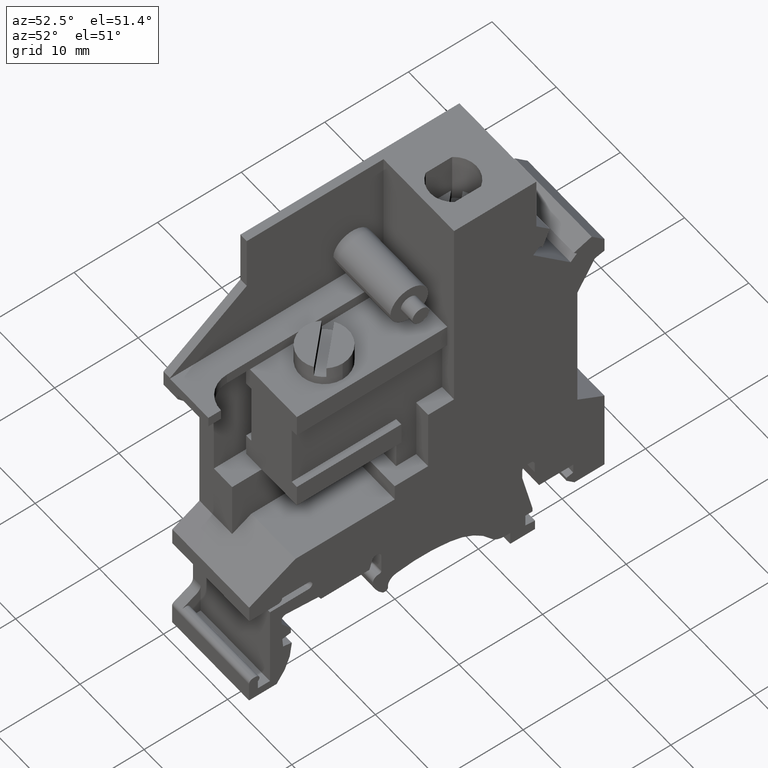
[diagram: clean part render]
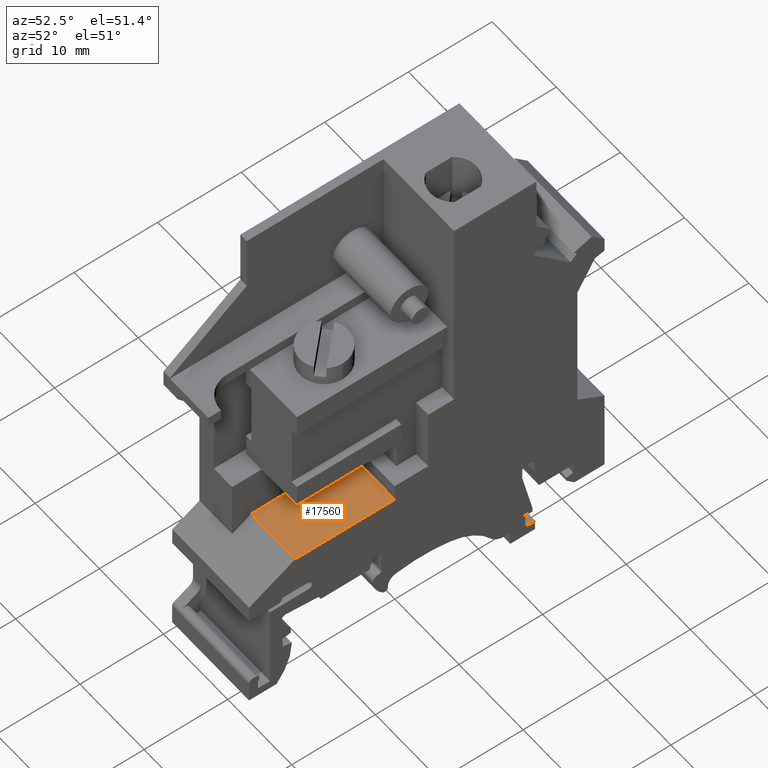
[diagram: same view with one face highlighted and labeled with its STEP entity id]
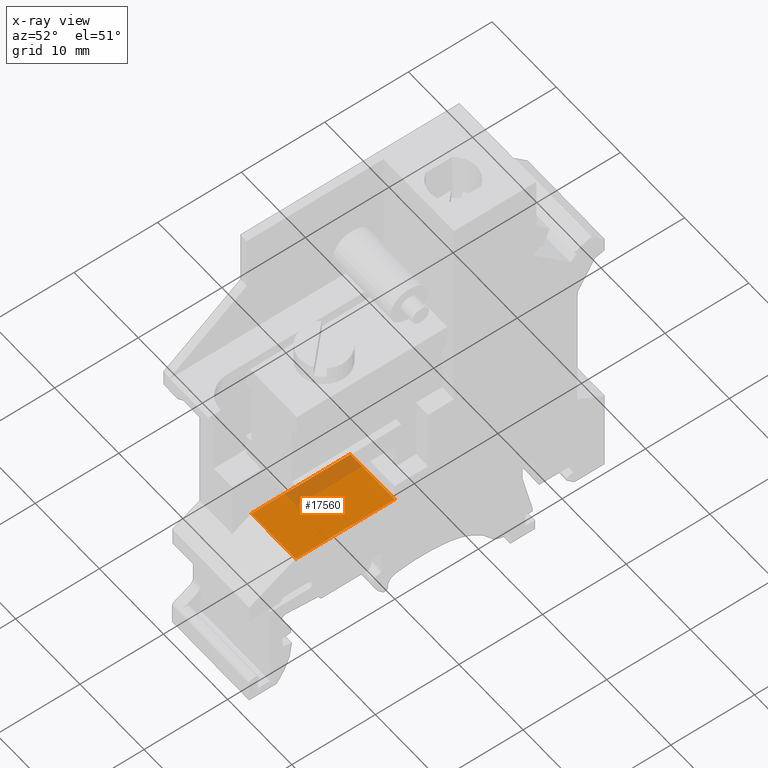
[diagram: x-ray of the same camera — body ghosted, the highlighted face saturated]
A machine part, auxiliary view. The second image highlights one B-rep face of the part: STEP entity #17560.
The next image is the same camera in x-ray: the body ghosted, the highlighted face saturated — about 17% of this face is hidden behind the body in this view.
In plain terms, the highlighted planar face has unit normal (0, 0, 1).
Its self-contained STEP definition (entity closure, byte-faithful):
#7560=CARTESIAN_POINT('',(-155.605125039702,131.078997429054,0.));
#7570=VERTEX_POINT('',#7560);
#7600=CARTESIAN_POINT('',(-155.605125039702,131.078997429054,0.));
#7610=DIRECTION('',(0.,0.,-1.));
#7620=VECTOR('',#7610,1.);
#7630=LINE('',#7600,#7620);
#7640=CARTESIAN_POINT('',(-155.605125039702,131.078997429054,-6.9));
#7650=VERTEX_POINT('',#7640);
#7660=EDGE_CURVE('',#7570,#7650,#7630,.T.);
#17260=CARTESIAN_POINT('',(-157.055125039702,131.078997429054,-1.85));
#17270=DIRECTION('',(-0.,1.,0.));
#17280=DIRECTION('',(1.,0.,0.));
#17290=AXIS2_PLACEMENT_3D('',#17260,#17270,#17280);
#17300=PLANE('',#17290);
#17310=CARTESIAN_POINT('',(-167.462562455481,131.078997429054,0.));
#17320=DIRECTION('',(0.,0.,-1.));
#17330=VECTOR('',#17320,1.);
#17340=LINE('',#17310,#17330);
#17350=CARTESIAN_POINT('',(-167.462562455481,131.078997429054,0.));
#17360=VERTEX_POINT('',#17350);
#17370=CARTESIAN_POINT('',(-167.462562455481,131.078997429054,-6.9));
#17380=VERTEX_POINT('',#17370);
#17390=EDGE_CURVE('',#17360,#17380,#17340,.T.);
#17400=ORIENTED_EDGE('',*,*,#17390,.F.);
#17410=CARTESIAN_POINT('',(0.,131.078997429054,-6.9));
#17420=DIRECTION('',(1.,0.,0.));
#17430=VECTOR('',#17420,1.);
#17440=LINE('',#17410,#17430);
#17450=EDGE_CURVE('',#17380,#7650,#17440,.T.);
#17460=ORIENTED_EDGE('',*,*,#17450,.F.);
#17470=ORIENTED_EDGE('',*,*,#7660,.T.);
#17480=CARTESIAN_POINT('',(0.,131.078997429054,0.));
#17490=DIRECTION('',(1.,0.,0.));
#17500=VECTOR('',#17490,1.);
#17510=LINE('',#17480,#17500);
#17520=EDGE_CURVE('',#17360,#7570,#17510,.T.);
#17530=ORIENTED_EDGE('',*,*,#17520,.T.);
#17540=EDGE_LOOP('',(#17530,#17470,#17460,#17400));
#17550=FACE_OUTER_BOUND('',#17540,.T.);
#17560=ADVANCED_FACE('',(#17550),#17300,.T.);